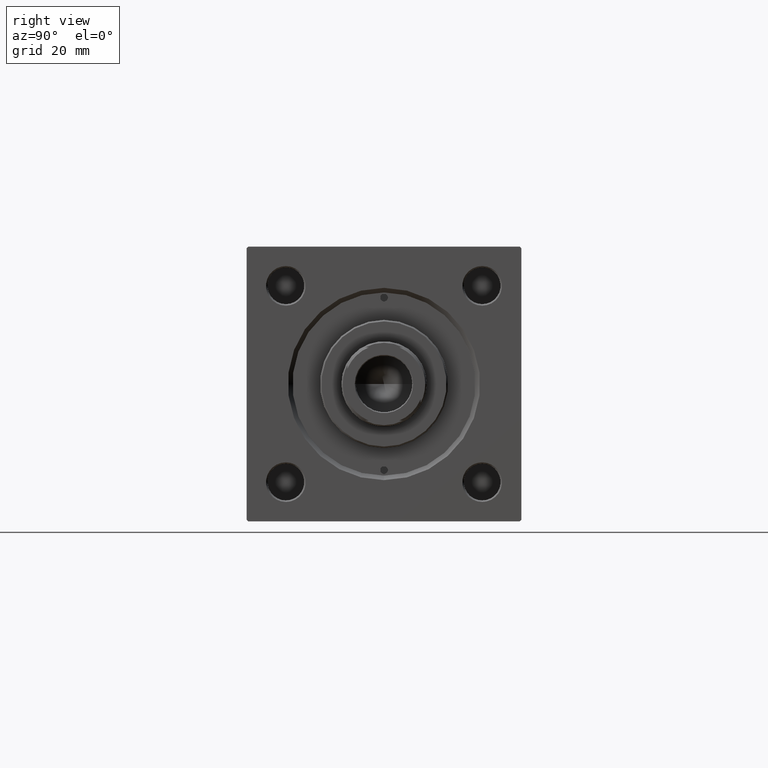
[diagram: clean part render]
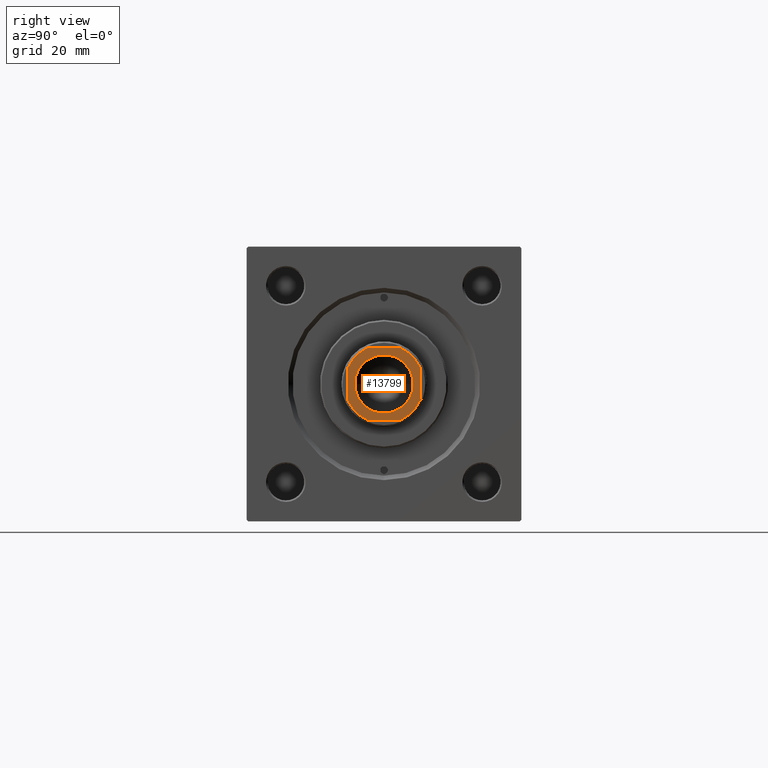
[diagram: same view with one face highlighted and labeled with its STEP entity id]
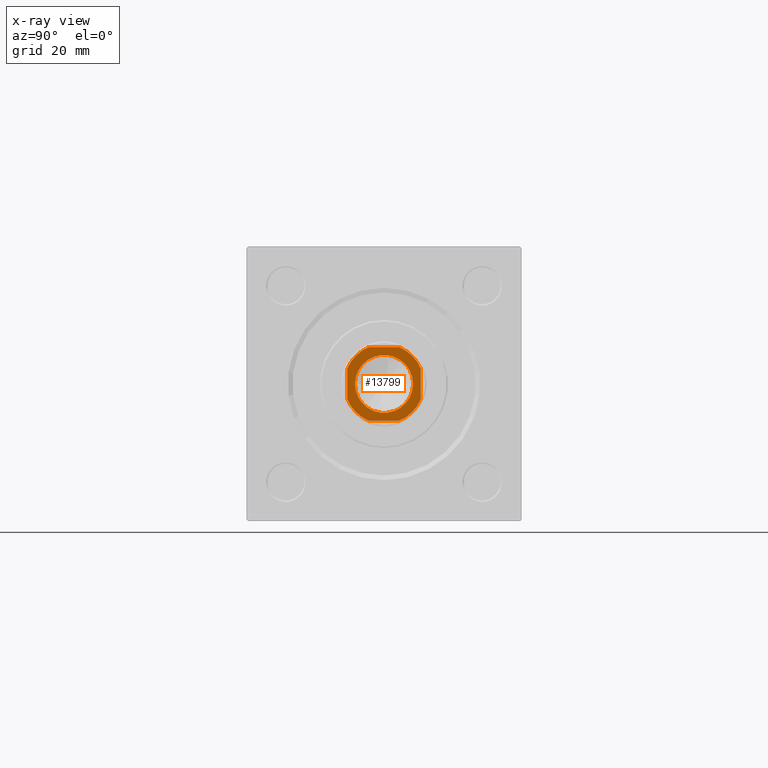
[diagram: x-ray of the same camera — body ghosted, the highlighted face saturated]
A machine part, right view. The second image highlights one B-rep face of the part: STEP entity #13799.
The next image is the same camera in x-ray: the body ghosted, the highlighted face saturated — about 0% of this face is hidden behind the body in this view.
In plain terms, the highlighted planar face has unit normal (1, 0, 0).
Its self-contained STEP definition (entity closure, byte-faithful):
#302 = EDGE_CURVE ( 'NONE', #38370, #21645, #47519, .T. ) ;
#774 = EDGE_CURVE ( 'NONE', #14387, #49196, #6872, .T. ) ;
#1190 = CARTESIAN_POINT ( 'NONE',  ( -5.000000000000085265, -12.00000000000000355, 150.0000000000000000 ) ) ;
#1959 = DIRECTION ( 'NONE',  ( 0.000000000000000000, -0.000000000000000000, -1.000000000000000000 ) ) ;
#2426 = CIRCLE ( 'NONE', #29258, 12.99999999999999289 ) ;
#2540 = VECTOR ( 'NONE', #4950, 1000.000000000000000 ) ;
#2581 = EDGE_LOOP ( 'NONE', ( #26570, #17986 ) ) ;
#3268 = CARTESIAN_POINT ( 'NONE',  ( 0.000000000000000000, 0.000000000000000000, 150.0000000000000000 ) ) ;
#3597 = DIRECTION ( 'NONE',  ( -0.000000000000000000, 0.000000000000000000, 1.000000000000000000 ) ) ;
#3760 = DIRECTION ( 'NONE',  ( 1.000000000000000000, 0.000000000000000000, 0.000000000000000000 ) ) ;
#4246 = CARTESIAN_POINT ( 'NONE',  ( 11.99999999999999822, 4.999999999999885425, 150.0000000000000000 ) ) ;
#4343 = DIRECTION ( 'NONE',  ( 1.000000000000000000, 0.000000000000000000, 0.000000000000000000 ) ) ;
#4586 = DIRECTION ( 'NONE',  ( -2.891205793294678326E-16, 1.000000000000000000, -0.000000000000000000 ) ) ;
#4831 = ORIENTED_EDGE ( 'NONE', *, *, #48458, .T. ) ;
#4950 = DIRECTION ( 'NONE',  ( -1.000000000000000000, -0.000000000000000000, -0.000000000000000000 ) ) ;
#5716 = LINE ( 'NONE', #5969, #20533 ) ;
#5969 = CARTESIAN_POINT ( 'NONE',  ( -11.99999999999999822, -12.00000000000000355, 150.0000000000000000 ) ) ;
#6872 = CIRCLE ( 'NONE', #45880, 9.550000000000030909 ) ;
#7074 = DIRECTION ( 'NONE',  ( -0.000000000000000000, 0.000000000000000000, 1.000000000000000000 ) ) ;
#8772 = LINE ( 'NONE', #12339, #2540 ) ;
#10997 = DIRECTION ( 'NONE',  ( -0.000000000000000000, 0.000000000000000000, 1.000000000000000000 ) ) ;
#11173 = CARTESIAN_POINT ( 'NONE',  ( 9.550000000000030909, 0.000000000000000000, 150.0000000000000000 ) ) ;
#12339 = CARTESIAN_POINT ( 'NONE',  ( -12.00000000000000000, 11.99999999999999645, 150.0000000000000000 ) ) ;
#13074 = VERTEX_POINT ( 'NONE', #4246 ) ;
#13101 = ORIENTED_EDGE ( 'NONE', *, *, #37826, .T. ) ;
#13165 = CARTESIAN_POINT ( 'NONE',  ( 0.000000000000000000, 0.000000000000000000, 150.0000000000000000 ) ) ;
#13680 = DIRECTION ( 'NONE',  ( 1.000000000000000000, 0.000000000000000000, 0.000000000000000000 ) ) ;
#13799 = ADVANCED_FACE ( 'NONE', ( #41986, #34584 ), #45811, .T. ) ;
#14065 = CIRCLE ( 'NONE', #18145, 9.550000000000030909 ) ;
#14387 = VERTEX_POINT ( 'NONE', #37052 ) ;
#16256 = AXIS2_PLACEMENT_3D ( 'NONE', #41963, #7074, #46039 ) ;
#16386 = EDGE_LOOP ( 'NONE', ( #18485, #19077, #39253, #13101, #38015, #19327, #4831, #32945 ) ) ;
#17986 = ORIENTED_EDGE ( 'NONE', *, *, #774, .T. ) ;
#18145 = AXIS2_PLACEMENT_3D ( 'NONE', #13165, #1959, #13680 ) ;
#18402 = CARTESIAN_POINT ( 'NONE',  ( 0.000000000000000000, 0.000000000000000000, 150.0000000000000000 ) ) ;
#18485 = ORIENTED_EDGE ( 'NONE', *, *, #45028, .T. ) ;
#18822 = DIRECTION ( 'NONE',  ( -0.000000000000000000, 0.000000000000000000, 1.000000000000000000 ) ) ;
#19077 = ORIENTED_EDGE ( 'NONE', *, *, #27186, .T. ) ;
#19327 = ORIENTED_EDGE ( 'NONE', *, *, #302, .T. ) ;
#19645 = CARTESIAN_POINT ( 'NONE',  ( 11.99999999999999645, 11.99999999999999645, 150.0000000000000000 ) ) ;
#20533 = VECTOR ( 'NONE', #22270, 1000.000000000000000 ) ;
#21097 = EDGE_CURVE ( 'NONE', #33818, #41058, #47750, .T. ) ;
#21473 = DIRECTION ( 'NONE',  ( 1.000000000000000000, 0.000000000000000000, 0.000000000000000000 ) ) ;
#21645 = VERTEX_POINT ( 'NONE', #1190 ) ;
#22270 = DIRECTION ( 'NONE',  ( 1.000000000000000000, 0.000000000000000000, 0.000000000000000000 ) ) ;
#22408 = CARTESIAN_POINT ( 'NONE',  ( 5.000000000000101252, -12.00000000000000355, 150.0000000000000000 ) ) ;
#25784 = AXIS2_PLACEMENT_3D ( 'NONE', #26999, #45365, #45861 ) ;
#25914 = DIRECTION ( 'NONE',  ( 0.000000000000000000, -0.000000000000000000, -1.000000000000000000 ) ) ;
#26026 = DIRECTION ( 'NONE',  ( 7.228014483236695816E-17, -1.000000000000000000, 0.000000000000000000 ) ) ;
#26525 = AXIS2_PLACEMENT_3D ( 'NONE', #3268, #18822, #3760 ) ;
#26570 = ORIENTED_EDGE ( 'NONE', *, *, #49340, .T. ) ;
#26824 = VERTEX_POINT ( 'NONE', #41267 ) ;
#26999 = CARTESIAN_POINT ( 'NONE',  ( 0.000000000000000000, 0.000000000000000000, 150.0000000000000000 ) ) ;
#27186 = EDGE_CURVE ( 'NONE', #13074, #29441, #39310, .T. ) ;
#29258 = AXIS2_PLACEMENT_3D ( 'NONE', #18402, #10997, #21473 ) ;
#29441 = VERTEX_POINT ( 'NONE', #39797 ) ;
#30234 = CARTESIAN_POINT ( 'NONE',  ( 0.000000000000000000, 0.000000000000000000, 150.0000000000000000 ) ) ;
#31942 = VECTOR ( 'NONE', #4586, 1000.000000000000000 ) ;
#32945 = ORIENTED_EDGE ( 'NONE', *, *, #21097, .T. ) ;
#33818 = VERTEX_POINT ( 'NONE', #22408 ) ;
#34584 = FACE_OUTER_BOUND ( 'NONE', #16386, .T. ) ;
#36994 = CARTESIAN_POINT ( 'NONE',  ( -12.00000000000000000, 11.99999999999999645, 150.0000000000000000 ) ) ;
#37052 = CARTESIAN_POINT ( 'NONE',  ( -9.550000000000030909, 1.169537693185725911E-15, 150.0000000000000000 ) ) ;
#37826 = EDGE_CURVE ( 'NONE', #48624, #26824, #2426, .T. ) ;
#38015 = ORIENTED_EDGE ( 'NONE', *, *, #49560, .T. ) ;
#38370 = VERTEX_POINT ( 'NONE', #42133 ) ;
#38499 = CARTESIAN_POINT ( 'NONE',  ( 0.000000000000000000, 0.000000000000000000, 150.0000000000000000 ) ) ;
#39253 = ORIENTED_EDGE ( 'NONE', *, *, #42171, .T. ) ;
#39310 = CIRCLE ( 'NONE', #16256, 12.99999999999995381 ) ;
#39797 = CARTESIAN_POINT ( 'NONE',  ( 4.999999999999889866, 11.99999999999999645, 150.0000000000000000 ) ) ;
#41058 = VERTEX_POINT ( 'NONE', #43214 ) ;
#41267 = CARTESIAN_POINT ( 'NONE',  ( -12.00000000000000000, 4.999999999999979572, 150.0000000000000000 ) ) ;
#41963 = CARTESIAN_POINT ( 'NONE',  ( 0.000000000000000000, 0.000000000000000000, 150.0000000000000000 ) ) ;
#41986 = FACE_BOUND ( 'NONE', #2581, .T. ) ;
#42133 = CARTESIAN_POINT ( 'NONE',  ( -12.00000000000000000, -5.000000000000094147, 150.0000000000000000 ) ) ;
#42171 = EDGE_CURVE ( 'NONE', #29441, #48624, #8772, .T. ) ;
#43214 = CARTESIAN_POINT ( 'NONE',  ( 12.00000000000000178, -5.000000000000104805, 150.0000000000000000 ) ) ;
#43307 = LINE ( 'NONE', #19645, #31942 ) ;
#43440 = AXIS2_PLACEMENT_3D ( 'NONE', #38499, #3597, #4343 ) ;
#43866 = CARTESIAN_POINT ( 'NONE',  ( -4.999999999999987566, 11.99999999999999645, 150.0000000000000000 ) ) ;
#45028 = EDGE_CURVE ( 'NONE', #41058, #13074, #43307, .T. ) ;
#45365 = DIRECTION ( 'NONE',  ( -0.000000000000000000, 0.000000000000000000, 1.000000000000000000 ) ) ;
#45769 = DIRECTION ( 'NONE',  ( 1.000000000000000000, 0.000000000000000000, 0.000000000000000000 ) ) ;
#45793 = VECTOR ( 'NONE', #26026, 1000.000000000000000 ) ;
#45811 = PLANE ( 'NONE',  #26525 ) ;
#45861 = DIRECTION ( 'NONE',  ( 1.000000000000000000, 0.000000000000000000, 0.000000000000000000 ) ) ;
#45880 = AXIS2_PLACEMENT_3D ( 'NONE', #30234, #25914, #45769 ) ;
#46039 = DIRECTION ( 'NONE',  ( 1.000000000000000000, 0.000000000000000000, 0.000000000000000000 ) ) ;
#47519 = CIRCLE ( 'NONE', #43440, 13.00000000000003553 ) ;
#47750 = CIRCLE ( 'NONE', #25784, 13.00000000000004263 ) ;
#48458 = EDGE_CURVE ( 'NONE', #21645, #33818, #5716, .T. ) ;
#48624 = VERTEX_POINT ( 'NONE', #43866 ) ;
#49196 = VERTEX_POINT ( 'NONE', #11173 ) ;
#49340 = EDGE_CURVE ( 'NONE', #49196, #14387, #14065, .T. ) ;
#49458 = LINE ( 'NONE', #36994, #45793 ) ;
#49560 = EDGE_CURVE ( 'NONE', #26824, #38370, #49458, .T. ) ;